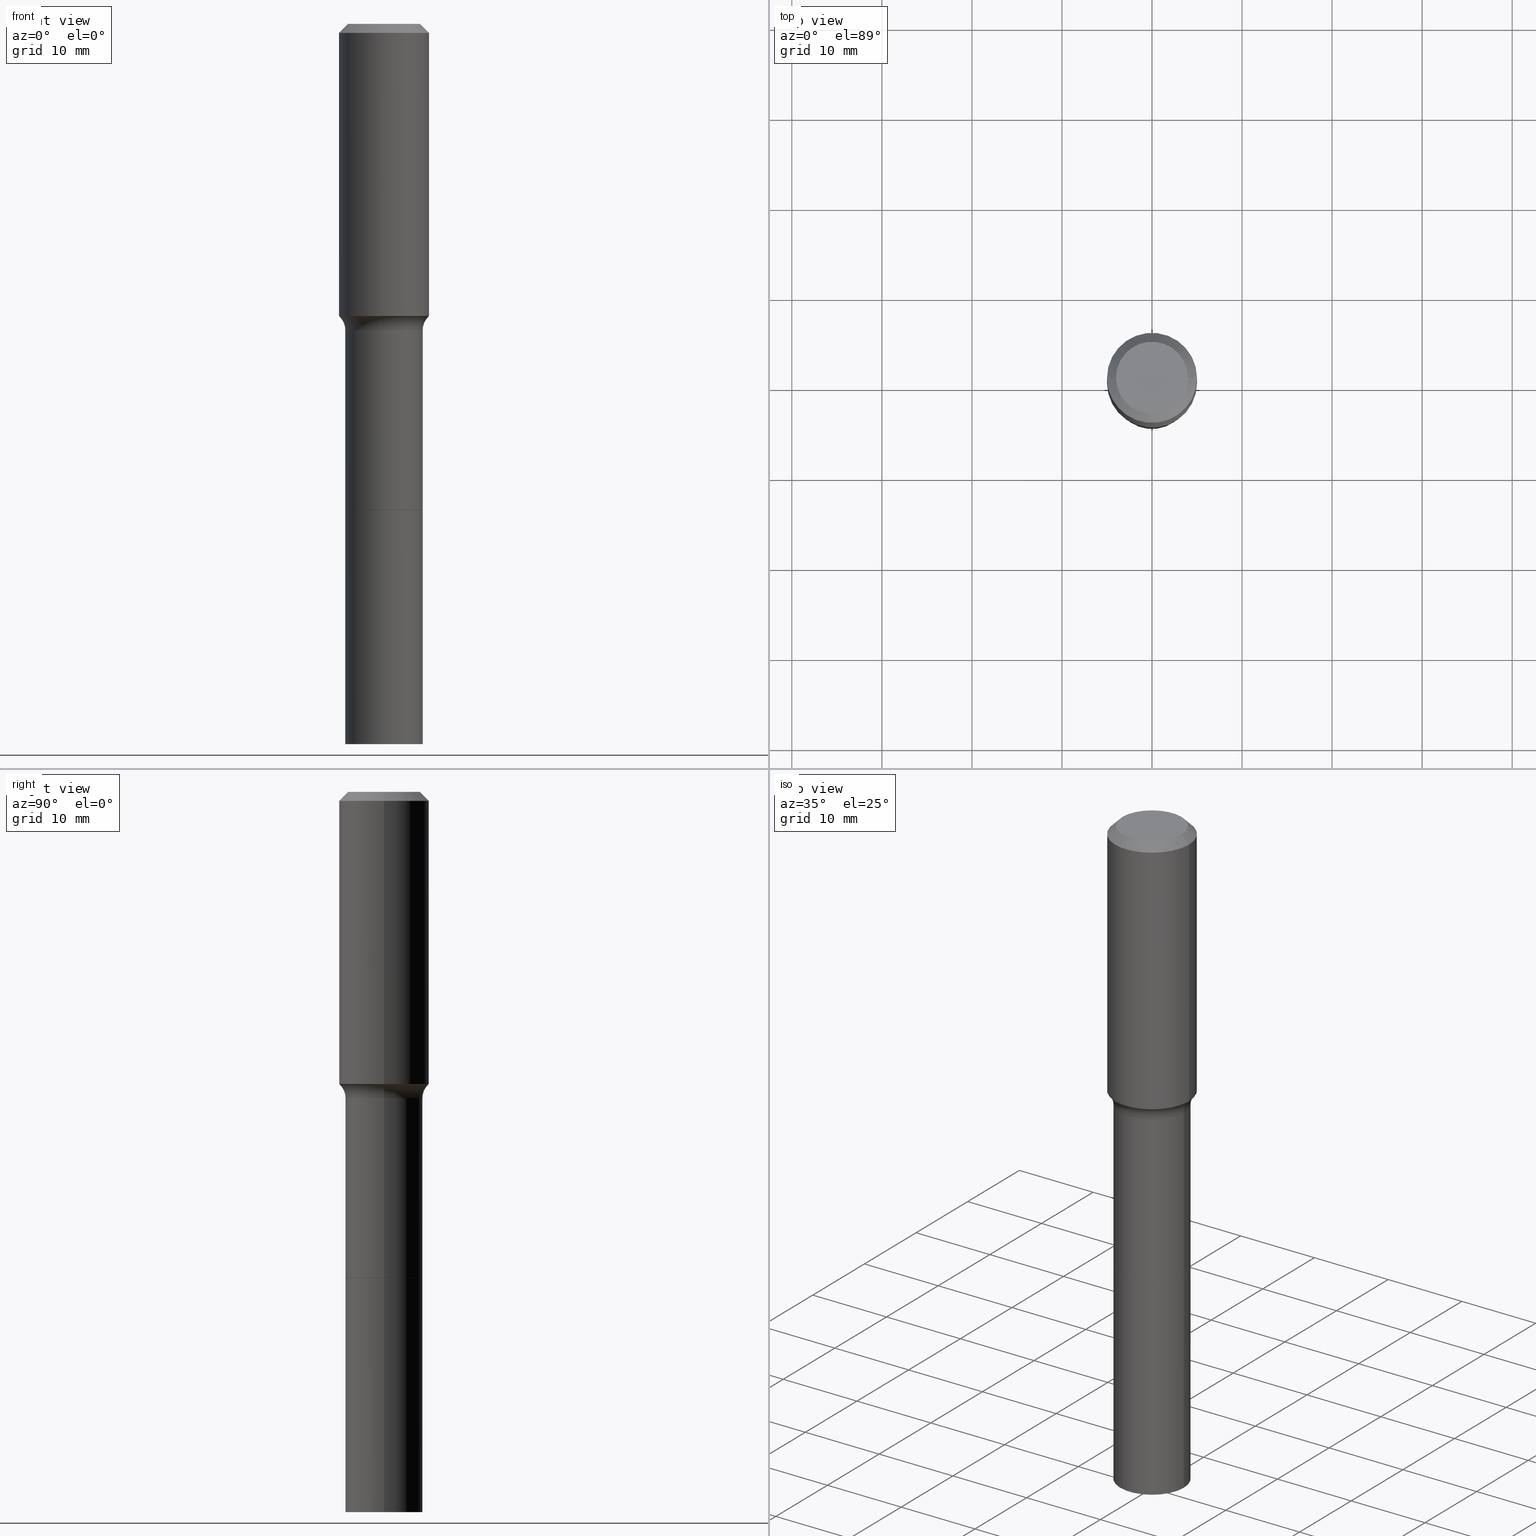
[diagram: canonical four-view strip — front | top / right | iso, engineering-drawing reading convention]
A machine part, canonical four-view strip (front | top / right | iso — engineering-drawing reading convention). The complete STEP part file that produces these views, byte-faithful:
ISO-10303-21;
HEADER;
FILE_DESCRIPTION (( 'STEP AP203' ),
    '1' );
FILE_NAME ('67763.STEP',
    '2025-04-01T15:30:20',
    ( '' ),
    ( '' ),
    'SwSTEP 2.0',
    'SolidWorks 2024',
    '' );
FILE_SCHEMA (( 'CONFIG_CONTROL_DESIGN' ));
ENDSEC;

DATA;
#1 = CARTESIAN_POINT ( 'NONE',  ( -0.1693000000000000338, -4.843773105033651673E-15, -2.125100000000000211 ) ) ;
#2 = CC_DESIGN_PERSON_AND_ORGANIZATION_ASSIGNMENT ( #253, #486, ( #363 ) ) ;
#3 = DIRECTION ( 'NONE',  ( -2.445468806185136597E-29, 3.491481338843145583E-15, 1.000000000000000000 ) ) ;
#4 = VECTOR ( 'NONE', #65, 39.37007874015748143 ) ;
#5 = DIRECTION ( 'NONE',  ( -2.445468806185136597E-29, 3.491481338843145583E-15, 1.000000000000000000 ) ) ;
#6 = FACE_OUTER_BOUND ( 'NONE', #312, .T. ) ;
#7 = ORIENTED_EDGE ( 'NONE', *, *, #441, .T. ) ;
#8 = EDGE_CURVE ( 'NONE', #498, #374, #168, .T. ) ;
#9 = DIRECTION ( 'NONE',  ( 1.000000000000000000, -6.982962677686266711E-15, 0.000000000000000000 ) ) ;
#10 = CIRCLE ( 'NONE', #76, 0.1688000000000000334 ) ;
#11 = AXIS2_PLACEMENT_3D ( 'NONE', #225, #464, #500 ) ;
#12 = CARTESIAN_POINT ( 'NONE',  ( 0.1693000000000000338, -8.603708315177275821E-15, -2.125599999999999934 ) ) ;
#13 = EDGE_CURVE ( 'NONE', #495, #30, #229, .T. ) ;
#14 = DIRECTION ( 'NONE',  ( -2.445468806185136597E-29, 3.491481338843145583E-15, 1.000000000000000000 ) ) ;
#15 = FACE_OUTER_BOUND ( 'NONE', #362, .T. ) ;
#16 = APPROVAL ( #238, 'UNSPECIFIED' ) ;
#17 = CIRCLE ( 'NONE', #443, 0.1968500000000001915 ) ;
#19 = DIRECTION ( 'NONE',  ( 1.000000000000000000, -6.982962677686266711E-15, 4.876176775795935793E-29 ) ) ;
#18 =( GEOMETRIC_REPRESENTATION_CONTEXT ( 3 ) GLOBAL_UNCERTAINTY_ASSIGNED_CONTEXT ( ( #497 ) ) GLOBAL_UNIT_ASSIGNED_CONTEXT ( ( #130, #44, #232 ) ) REPRESENTATION_CONTEXT ( 'NONE', 'WORKASPACE' ) );
#20 = VERTEX_POINT ( 'NONE', #117 ) ;
#21 = APPLICATION_PROTOCOL_DEFINITION ( 'international standard', 'config_control_design', 1994, #382 ) ;
#22 = LINE ( 'NONE', #454, #282 ) ;
#23 = ORIENTED_EDGE ( 'NONE', *, *, #13, .F. ) ;
#24 = CC_DESIGN_PERSON_AND_ORGANIZATION_ASSIGNMENT ( #499, #141, ( #249 ) ) ;
#25 = PLANE ( 'NONE',  #248 ) ;
#26 = VECTOR ( 'NONE', #355, 39.37007874015748854 ) ;
#27 = APPROVAL_PERSON_ORGANIZATION ( #34, #16, #227 ) ;
#28 = ORIENTED_EDGE ( 'NONE', *, *, #13, .T. ) ;
#29 = DIRECTION ( 'NONE',  ( 2.445468806185136597E-29, -3.491481338843145583E-15, -1.000000000000000000 ) ) ;
#30 = VERTEX_POINT ( 'NONE', #235 ) ;
#31 = DIRECTION ( 'NONE',  ( -2.445468806185136597E-29, 3.491481338843145583E-15, 1.000000000000000000 ) ) ;
#32 = VERTEX_POINT ( 'NONE', #356 ) ;
#33 = EDGE_CURVE ( 'NONE', #252, #155, #474, .T. ) ;
#34 = PERSON_AND_ORGANIZATION ( #323, #208 ) ;
#35 = DIRECTION ( 'NONE',  ( -1.000000000000000000, 6.982962677686265922E-15, -4.876176775795935793E-29 ) ) ;
#37 = EDGE_LOOP ( 'NONE', ( #269, #100, #488, #420 ) ) ;
#36 = AXIS2_PLACEMENT_3D ( 'NONE', #410, #99, #93 ) ;
#38 = PERSON_AND_ORGANIZATION_ROLE ( 'creator' ) ;
#39 = CONICAL_SURFACE ( 'NONE', #112, 0.1907917038704664836, 0.7504915783575588639 ) ;
#40 = CARTESIAN_POINT ( 'NONE',  ( 7.702248551960706711E-29, -1.099676962482037231E-14, -3.149600000000000399 ) ) ;
#41 = ORIENTED_EDGE ( 'NONE', *, *, #109, .F. ) ;
#42 = DIRECTION ( 'NONE',  ( 1.000000000000000000, -6.982962677686265922E-15, 4.876176775795935793E-29 ) ) ;
#43 = ORIENTED_EDGE ( 'NONE', *, *, #211, .T. ) ;
#44 =( NAMED_UNIT ( * ) PLANE_ANGLE_UNIT ( ) SI_UNIT ( $, .RADIAN. ) );
#45 = DIRECTION ( 'NONE',  ( -2.445468806185136597E-29, 3.491481338843145583E-15, 1.000000000000000000 ) ) ;
#46 = CARTESIAN_POINT ( 'NONE',  ( -0.1907917038704664281, -3.127545564108527340E-15, -1.284040131195000489 ) ) ;
#47 = PLANE ( 'NONE',  #483 ) ;
#48 = EDGE_LOOP ( 'NONE', ( #286, #490, #426, #306 ) ) ;
#49 = EDGE_CURVE ( 'NONE', #477, #498, #472, .T. ) ;
#50 = DIRECTION ( 'NONE',  ( -1.000000000000000000, 6.982962677686266711E-15, 0.000000000000000000 ) ) ;
#51 = ADVANCED_FACE ( 'NONE', ( #237 ), #263, .T. ) ;
#52 = DIRECTION ( 'NONE',  ( -2.445468806185136877E-29, 3.491481338843145188E-15, 1.000000000000000000 ) ) ;
#53 = DIRECTION ( 'NONE',  ( -2.445468806185136597E-29, 3.491481338843145583E-15, 1.000000000000000000 ) ) ;
#54 = ORIENTED_EDGE ( 'NONE', *, *, #491, .T. ) ;
#55 = CIRCLE ( 'NONE', #427, 0.07999999999999990452 ) ;
#56 = EDGE_CURVE ( 'NONE', #171, #20, #160, .T. ) ;
#57 = AXIS2_PLACEMENT_3D ( 'NONE', #384, #31, #184 ) ;
#58 = CARTESIAN_POINT ( 'NONE',  ( 0.1968500000000000527, -1.512055823412797583E-15, -0.03937000000000030059 ) ) ;
#59 = VERTEX_POINT ( 'NONE', #46 ) ;
#60 = DIRECTION ( 'NONE',  ( 1.000000000000000000, -6.982962677686261189E-15, 0.000000000000000000 ) ) ;
#61 = VECTOR ( 'NONE', #429, 39.37007874015748143 ) ;
#62 = CC_DESIGN_APPROVAL ( #230, ( #402 ) ) ;
#63 = ADVANCED_FACE ( 'NONE', ( #6 ), #507, .F. ) ;
#64 = COORDINATED_UNIVERSAL_TIME_OFFSET ( 5, 0, .BEHIND. ) ;
#65 = DIRECTION ( 'NONE',  ( 0.7071067811865452413, -7.319954787623248157E-15, -0.7071067811865497932 ) ) ;
#66 = EDGE_LOOP ( 'NONE', ( #41, #324 ) ) ;
#67 = DIRECTION ( 'NONE',  ( 2.438088387897960049E-29, -3.491481338843145188E-15, -1.000000000000000000 ) ) ;
#68 = ORIENTED_EDGE ( 'NONE', *, *, #95, .F. ) ;
#69 = EDGE_CURVE ( 'NONE', #30, #403, #17, .T. ) ;
#70 = DIRECTION ( 'NONE',  ( -2.445468806185136597E-29, 3.491481338843145583E-15, 1.000000000000000000 ) ) ;
#71 = APPROVAL_DATE_TIME ( #81, #176 ) ;
#72 = DIRECTION ( 'NONE',  ( 2.438088387897960049E-29, -3.491481338843145188E-15, -1.000000000000000000 ) ) ;
#73 = DIRECTION ( 'NONE',  ( 1.000000000000000000, -6.982962677686268288E-15, 0.000000000000000000 ) ) ;
#74 = DATE_AND_TIME ( #313, #201 ) ;
#75 = CARTESIAN_POINT ( 'NONE',  ( 3.273504543959424474E-29, -4.673696920175435525E-15, -1.338600000000000234 ) ) ;
#77 = EDGE_LOOP ( 'NONE', ( #480, #260, #127, #512 ) ) ;
#76 = AXIS2_PLACEMENT_3D ( 'NONE', #449, #489, #371 ) ;
#78 = AXIS2_PLACEMENT_3D ( 'NONE', #276, #205, #82 ) ;
#79 = CARTESIAN_POINT ( 'NONE',  ( 7.600267408520522536E-29, -3.981435805330322322E-15, -2.125599999999999934 ) ) ;
#80 = ORIENTED_EDGE ( 'NONE', *, *, #211, .F. ) ;
#81 = DATE_AND_TIME ( #310, #274 ) ;
#82 = DIRECTION ( 'NONE',  ( 1.000000000000000000, -6.982962677686268288E-15, 0.000000000000000000 ) ) ;
#83 = ORIENTED_EDGE ( 'NONE', *, *, #165, .F. ) ;
#84 = EDGE_CURVE ( 'NONE', #59, #498, #55, .T. ) ;
#85 = CARTESIAN_POINT ( 'NONE',  ( -0.1692999999999999228, -4.843773105033653251E-15, -1.338600000000000234 ) ) ;
#86 = ORIENTED_EDGE ( 'NONE', *, *, #236, .T. ) ;
#87 = AXIS2_PLACEMENT_3D ( 'NONE', #442, #285, #284 ) ;
#88 = DIRECTION ( 'NONE',  ( 7.105427357601001859E-15, 1.000000000000000000, -3.491481338843145583E-15 ) ) ;
#89 = CARTESIAN_POINT ( 'NONE',  ( 0.1688000000000000334, -8.600216833838431236E-15, -2.125599999999999934 ) ) ;
#90 = FACE_OUTER_BOUND ( 'NONE', #137, .T. ) ;
#91 = EDGE_CURVE ( 'NONE', #338, #219, #390, .T. ) ;
#92 = DESIGN_CONTEXT ( 'detailed design', #382, 'design' ) ;
#93 = DIRECTION ( 'NONE',  ( 1.000000000000000000, -6.982962677686265922E-15, 4.876223630392693006E-29 ) ) ;
#94 = EDGE_LOOP ( 'NONE', ( #415, #189 ) ) ;
#95 = EDGE_CURVE ( 'NONE', #155, #252, #128, .T. ) ;
#96 = AXIS2_PLACEMENT_3D ( 'NONE', #273, #433, #428 ) ;
#97 = CARTESIAN_POINT ( 'NONE',  ( 0.000000000000000000, 0.000000000000000000, 0.000000000000000000 ) ) ;
#98 = ORIENTED_EDGE ( 'NONE', *, *, #69, .T. ) ;
#99 = DIRECTION ( 'NONE',  ( -2.445468806185136597E-29, 3.491481338843145583E-15, 1.000000000000000000 ) ) ;
#100 = ORIENTED_EDGE ( 'NONE', *, *, #505, .T. ) ;
#101 = ADVANCED_FACE ( 'NONE', ( #438 ), #215, .T. ) ;
#102 = AXIS2_PLACEMENT_3D ( 'NONE', #407, #136, #134 ) ;
#103 = AXIS2_PLACEMENT_3D ( 'NONE', #365, #156, #431 ) ;
#104 = COORDINATED_UNIVERSAL_TIME_OFFSET ( 5, 0, .BEHIND. ) ;
#105 = PLANE ( 'NONE',  #221 ) ;
#106 = ORIENTED_EDGE ( 'NONE', *, *, #91, .F. ) ;
#107 = EDGE_CURVE ( 'NONE', #423, #374, #333, .T. ) ;
#108 = ORIENTED_EDGE ( 'NONE', *, *, #49, .F. ) ;
#109 = EDGE_CURVE ( 'NONE', #179, #303, #10, .T. ) ;
#110 = CARTESIAN_POINT ( 'NONE',  ( 3.273504543959424474E-29, -4.673696920175435525E-15, -1.338600000000000234 ) ) ;
#111 = AXIS2_PLACEMENT_3D ( 'NONE', #75, #259, #421 ) ;
#112 = AXIS2_PLACEMENT_3D ( 'NONE', #419, #70, #468 ) ;
#113 = ORIENTED_EDGE ( 'NONE', *, *, #515, .F. ) ;
#114 = DIRECTION ( 'NONE',  ( -1.000000000000000000, 6.982962677686265922E-15, -4.876176775795935793E-29 ) ) ;
#115 = ORIENTED_EDGE ( 'NONE', *, *, #289, .T. ) ;
#116 = DIRECTION ( 'NONE',  ( 1.000000000000000000, -6.982962677686268288E-15, 0.000000000000000000 ) ) ;
#117 = CARTESIAN_POINT ( 'NONE',  ( -0.1574800000000000089, 1.168406772637159815E-15, 3.855188123707939751E-18 ) ) ;
#118 = CALENDAR_DATE ( 2025, 1, 4 ) ;
#120 = ORIENTED_EDGE ( 'NONE', *, *, #84, .T. ) ;
#119 = CONICAL_SURFACE ( 'NONE', #337, 0.1688000000000000334, 0.7853981633978239785 ) ;
#121 = ADVANCED_FACE ( 'NONE', ( #90 ), #255, .T. ) ;
#122 = AXIS2_PLACEMENT_3D ( 'NONE', #514, #202, #314 ) ;
#123 = ORIENTED_EDGE ( 'NONE', *, *, #510, .T. ) ;
#124 = CARTESIAN_POINT ( 'NONE',  ( 0.1907917038704664281, -5.815493503732685014E-15, -1.284040131195000489 ) ) ;
#125 = ORIENTED_EDGE ( 'NONE', *, *, #178, .F. ) ;
#126 = MECHANICAL_CONTEXT ( 'NONE', #216, 'mechanical' ) ;
#127 = ORIENTED_EDGE ( 'NONE', *, *, #510, .F. ) ;
#128 = CIRCLE ( 'NONE', #492, 0.1693000000000000338 ) ;
#129 = CIRCLE ( 'NONE', #169, 0.1907917038704664836 ) ;
#130 =( CONVERSION_BASED_UNIT ( 'INCH', #404 ) LENGTH_UNIT ( ) NAMED_UNIT ( #335 ) );
#131 = CARTESIAN_POINT ( 'NONE',  ( 7.702248551960706711E-29, -1.099676962482037231E-14, -3.149600000000000399 ) ) ;
#132 = DIRECTION ( 'NONE',  ( -2.445468806185136597E-29, 3.491481338843145583E-15, 1.000000000000000000 ) ) ;
#133 = EDGE_LOOP ( 'NONE', ( #291, #115, #279, #113 ) ) ;
#134 = DIRECTION ( 'NONE',  ( 1.000000000000000000, -6.982962677686266711E-15, 4.876176775795935793E-29 ) ) ;
#135 = AXIS2_PLACEMENT_3D ( 'NONE', #506, #460, #425 ) ;
#136 = DIRECTION ( 'NONE',  ( -2.445468806185136597E-29, 3.491481338843145583E-15, 1.000000000000000000 ) ) ;
#137 = EDGE_LOOP ( 'NONE', ( #108, #319, #447, #293 ) ) ;
#138 = ADVANCED_FACE ( 'NONE', ( #204 ), #336, .T. ) ;
#139 = ADVANCED_FACE ( 'NONE', ( #15 ), #369, .T. ) ;
#140 = ORIENTED_EDGE ( 'NONE', *, *, #448, .F. ) ;
#141 = PERSON_AND_ORGANIZATION_ROLE ( 'design_supplier' ) ;
#142 = VECTOR ( 'NONE', #172, 39.37007874015748143 ) ;
#143 = ORIENTED_EDGE ( 'NONE', *, *, #95, .T. ) ;
#144 = DIRECTION ( 'NONE',  ( 1.000000000000000000, -6.982962677686266711E-15, 0.000000000000000000 ) ) ;
#145 = ORIENTED_EDGE ( 'NONE', *, *, #236, .F. ) ;
#146 = PRODUCT_RELATED_PRODUCT_CATEGORY ( 'detail', '', ( #363 ) ) ;
#147 = FACE_OUTER_BOUND ( 'NONE', #77, .T. ) ;
#148 = EDGE_LOOP ( 'NONE', ( #262, #86, #166, #23 ) ) ;
#149 = LINE ( 'NONE', #261, #272 ) ;
#150 = CLOSED_SHELL ( 'NONE', ( #254, #330, #139, #349, #63, #226, #121, #264, #51, #138, #101, #325, #457, #292 ) ) ;
#151 = LOCAL_TIME ( 11, 30, 20.00000000000000000, #104 ) ;
#152 = APPROVAL_STATUS ( 'not_yet_approved' ) ;
#153 = ADVANCED_FACE ( 'NONE', ( #485 ), #405, .T. ) ;
#154 = CARTESIAN_POINT ( 'NONE',  ( 9.627810689950955906E-31, -1.374596203102556794E-16, -0.03937000000000030059 ) ) ;
#155 = VERTEX_POINT ( 'NONE', #12 ) ;
#156 = DIRECTION ( 'NONE',  ( -2.445468806185136597E-29, 3.491481338843145583E-15, 1.000000000000000000 ) ) ;
#157 = DIRECTION ( 'NONE',  ( -2.445468806185136597E-29, 3.491481338843145583E-15, 1.000000000000000000 ) ) ;
#158 = LINE ( 'NONE', #317, #408 ) ;
#160 = CIRCLE ( 'NONE', #233, 0.1574800000000000089 ) ;
#159 = DIRECTION ( 'NONE',  ( 1.000000000000000000, -6.982962677686265922E-15, 4.876223630392693006E-29 ) ) ;
#161 = EDGE_CURVE ( 'NONE', #20, #171, #366, .T. ) ;
#162 = CIRCLE ( 'NONE', #451, 0.1692999999999999228 ) ;
#163 = DIRECTION ( 'NONE',  ( 1.000000000000000000, -6.982962677686263555E-15, 0.000000000000000000 ) ) ;
#164 = ORIENTED_EDGE ( 'NONE', *, *, #33, .T. ) ;
#165 = EDGE_CURVE ( 'NONE', #393, #32, #435, .T. ) ;
#166 = ORIENTED_EDGE ( 'NONE', *, *, #69, .F. ) ;
#167 = DIRECTION ( 'NONE',  ( 2.445468806185136597E-29, -3.491481338843145583E-15, -1.000000000000000000 ) ) ;
#168 = CIRCLE ( 'NONE', #294, 0.1692999999999999228 ) ;
#169 = AXIS2_PLACEMENT_3D ( 'NONE', #360, #5, #163 ) ;
#170 = DIRECTION ( 'NONE',  ( -2.445468806185136597E-29, 3.491481338843145583E-15, 1.000000000000000000 ) ) ;
#171 = VERTEX_POINT ( 'NONE', #411 ) ;
#172 = DIRECTION ( 'NONE',  ( -2.445468806185136877E-29, 3.491481338843145188E-15, 1.000000000000000000 ) ) ;
#173 = CYLINDRICAL_SURFACE ( 'NONE', #135, 0.1692999999999999505 ) ;
#174 = CARTESIAN_POINT ( 'NONE',  ( -0.2492999999999999106, -2.902313879925506398E-15, -1.338600000000000234 ) ) ;
#175 = ORIENTED_EDGE ( 'NONE', *, *, #8, .T. ) ;
#176 = APPROVAL ( #152, 'UNSPECIFIED' ) ;
#177 = PERSON_AND_ORGANIZATION_ROLE ( 'creator' ) ;
#178 = EDGE_CURVE ( 'NONE', #30, #219, #331, .T. ) ;
#179 = VERTEX_POINT ( 'NONE', #209 ) ;
#180 = TOROIDAL_SURFACE ( 'NONE', #111, 0.2492999999999999106, 0.07999999999999993228 ) ;
#181 = CC_DESIGN_APPROVAL ( #176, ( #239 ) ) ;
#182 = LINE ( 'NONE', #191, #26 ) ;
#183 = DIRECTION ( 'NONE',  ( -1.000000000000000000, 6.982962677686266711E-15, 0.000000000000000000 ) ) ;
#184 = DIRECTION ( 'NONE',  ( 1.000000000000000000, -6.982962677686266711E-15, 0.000000000000000000 ) ) ;
#185 = ORIENTED_EDGE ( 'NONE', *, *, #343, .F. ) ;
#186 = DATE_AND_TIME ( #218, #463 ) ;
#187 = VECTOR ( 'NONE', #244, 39.37007874015748143 ) ;
#188 = FACE_OUTER_BOUND ( 'NONE', #377, .T. ) ;
#189 = ORIENTED_EDGE ( 'NONE', *, *, #56, .T. ) ;
#190 = APPROVAL_ROLE ( '' ) ;
#191 = CARTESIAN_POINT ( 'NONE',  ( -0.1688000000000000334, -6.222096595881940669E-15, -2.125599999999999934 ) ) ;
#192 = DIRECTION ( 'NONE',  ( -2.445468806185136597E-29, 3.491481338843145583E-15, 1.000000000000000000 ) ) ;
#193 = PERSON_AND_ORGANIZATION ( #323, #208 ) ;
#194 = CARTESIAN_POINT ( 'NONE',  ( -0.1693000000000001171, -6.218543882203139770E-15, -2.125599999999999934 ) ) ;
#195 = EDGE_LOOP ( 'NONE', ( #123, #332, #185, #266 ) ) ;
#196 = APPROVAL_ROLE ( '' ) ;
#197 = APPLICATION_PROTOCOL_DEFINITION ( 'international standard', 'config_control_design', 1994, #216 ) ;
#198 = CC_DESIGN_DATE_AND_TIME_ASSIGNMENT ( #74, #231, ( #402 ) ) ;
#200 = ORIENTED_EDGE ( 'NONE', *, *, #91, .T. ) ;
#199 = AXIS2_PLACEMENT_3D ( 'NONE', #309, #348, #223 ) ;
#201 = LOCAL_TIME ( 11, 30, 20.00000000000000000, #466 ) ;
#202 = DIRECTION ( 'NONE',  ( 0.000000000000000000, 0.000000000000000000, 1.000000000000000000 ) ) ;
#203 = ORIENTED_EDGE ( 'NONE', *, *, #343, .T. ) ;
#204 = FACE_OUTER_BOUND ( 'NONE', #434, .T. ) ;
#205 = DIRECTION ( 'NONE',  ( -6.982962677686266711E-15, -1.000000000000000000, 3.491481338843145583E-15 ) ) ;
#206 = CARTESIAN_POINT ( 'NONE',  ( 9.627810689950955906E-31, -1.374596203102556794E-16, -0.03937000000000030059 ) ) ;
#207 = AXIS2_PLACEMENT_3D ( 'NONE', #446, #287, #245 ) ;
#208 = ORGANIZATION ( 'UNSPECIFIED', 'UNSPECIFIED', '' ) ;
#209 = CARTESIAN_POINT ( 'NONE',  ( 0.1688000000000000334, -8.600216833838431236E-15, -2.125599999999999934 ) ) ;
#210 = DATE_AND_TIME ( #118, #318 ) ;
#211 = EDGE_CURVE ( 'NONE', #403, #338, #487, .T. ) ;
#212 = FACE_OUTER_BOUND ( 'NONE', #195, .T. ) ;
#213 = CARTESIAN_POINT ( 'NONE',  ( 9.627810689950955906E-31, -1.374596203102556794E-16, -0.03937000000000030059 ) ) ;
#214 = VECTOR ( 'NONE', #251, 39.37007874015748143 ) ;
#215 = CONICAL_SURFACE ( 'NONE', #288, 0.1968500000000000527, 0.7853981633974450594 ) ;
#216 = APPLICATION_CONTEXT ( 'configuration controlled 3d designs of mechanical parts and assemblies' ) ;
#217 = ORIENTED_EDGE ( 'NONE', *, *, #289, .F. ) ;
#218 = CALENDAR_DATE ( 2025, 1, 4 ) ;
#219 = VERTEX_POINT ( 'NONE', #58 ) ;
#220 = FACE_OUTER_BOUND ( 'NONE', #452, .T. ) ;
#221 = AXIS2_PLACEMENT_3D ( 'NONE', #516, #67, #114 ) ;
#222 = CC_DESIGN_APPROVAL ( #16, ( #249 ) ) ;
#223 = DIRECTION ( 'NONE',  ( 1.000000000000000000, -6.982962677686266711E-15, 0.000000000000000000 ) ) ;
#224 = EDGE_LOOP ( 'NONE', ( #145, #54, #28, #246 ) ) ;
#225 = CARTESIAN_POINT ( 'NONE',  ( 5.196865760024034053E-29, -7.419746993175568713E-15, -2.125100000000000211 ) ) ;
#226 = ADVANCED_FACE ( 'NONE', ( #212 ), #173, .T. ) ;
#227 = APPROVAL_ROLE ( '' ) ;
#228 = DIRECTION ( 'NONE',  ( 1.000000000000000000, -6.982962677686269077E-15, 0.000000000000000000 ) ) ;
#229 = LINE ( 'NONE', #387, #256 ) ;
#230 = APPROVAL ( #388, 'UNSPECIFIED' ) ;
#231 = DATE_TIME_ROLE ( 'classification_date' ) ;
#232 =( NAMED_UNIT ( * ) SI_UNIT ( $, .STERADIAN. ) SOLID_ANGLE_UNIT ( ) );
#233 = AXIS2_PLACEMENT_3D ( 'NONE', #359, #3, #159 ) ;
#234 = DIRECTION ( 'NONE',  ( -0.6819983600624963671, 7.399397606724278688E-15, 0.7313537016191724582 ) ) ;
#235 = CARTESIAN_POINT ( 'NONE',  ( 0.1968500000000001915, -5.835115157694468144E-15, -1.277543403989624737 ) ) ;
#236 = EDGE_CURVE ( 'NONE', #59, #403, #149, .T. ) ;
#237 = FACE_OUTER_BOUND ( 'NONE', #224, .T. ) ;
#238 = APPROVAL_STATUS ( 'not_yet_approved' ) ;
#239 = PRODUCT_DEFINITION ( 'UNKNOWN', '', #249, #92 ) ;
#240 = CARTESIAN_POINT ( 'NONE',  ( 3.140080086727243582E-29, -4.483202156393049043E-15, -1.284040131195000489 ) ) ;
#241 = ORIENTED_EDGE ( 'NONE', *, *, #430, .T. ) ;
#242 = CYLINDRICAL_SURFACE ( 'NONE', #508, 0.1693000000000001171 ) ;
#243 = ORIENTED_EDGE ( 'NONE', *, *, #515, .T. ) ;
#244 = DIRECTION ( 'NONE',  ( -2.445468806185136877E-29, 3.491481338843145188E-15, 1.000000000000000000 ) ) ;
#245 = DIRECTION ( 'NONE',  ( 1.000000000000000000, -6.982962677686266711E-15, 4.876176775795935232E-29 ) ) ;
#246 = ORIENTED_EDGE ( 'NONE', *, *, #378, .F. ) ;
#247 = CARTESIAN_POINT ( 'NONE',  ( -0.1968500000000001082, 1.398703375343757985E-15, -9.682923725166787881E-30 ) ) ;
#248 = AXIS2_PLACEMENT_3D ( 'NONE', #40, #72, #35 ) ;
#249 = PRODUCT_DEFINITION_FORMATION_WITH_SPECIFIED_SOURCE ( 'ANY', '', #363, .NOT_KNOWN. ) ;
#250 = ADVANCED_FACE ( 'NONE', ( #220 ), #105, .F. ) ;
#251 = DIRECTION ( 'NONE',  ( -2.445468806185136877E-29, 3.491481338843145188E-15, 1.000000000000000000 ) ) ;
#252 = VERTEX_POINT ( 'NONE', #379 ) ;
#253 = PERSON_AND_ORGANIZATION ( #323, #208 ) ;
#254 = ADVANCED_FACE ( 'NONE', ( #147 ), #119, .T. ) ;
#255 = CYLINDRICAL_SURFACE ( 'NONE', #207, 0.1692999999999999505 ) ;
#256 = VECTOR ( 'NONE', #469, 39.37007874015748143 ) ;
#257 = VECTOR ( 'NONE', #52, 39.37007874015748143 ) ;
#258 = DIRECTION ( 'NONE',  ( -0.7071067811865452413, 2.468850131082233000E-15, -0.7071067811865497932 ) ) ;
#259 = DIRECTION ( 'NONE',  ( -2.445468806185136597E-29, 3.491481338843145583E-15, 1.000000000000000000 ) ) ;
#260 = ORIENTED_EDGE ( 'NONE', *, *, #280, .T. ) ;
#261 = CARTESIAN_POINT ( 'NONE',  ( -0.1907917038704664836, -3.127545564108527340E-15, -1.284040131195000489 ) ) ;
#262 = ORIENTED_EDGE ( 'NONE', *, *, #473, .T. ) ;
#263 = CONICAL_SURFACE ( 'NONE', #450, 0.1907917038704664836, 0.7504915783575588639 ) ;
#264 = ADVANCED_FACE ( 'NONE', ( #392 ), #180, .F. ) ;
#265 = FACE_OUTER_BOUND ( 'NONE', #148, .T. ) ;
#266 = ORIENTED_EDGE ( 'NONE', *, *, #107, .F. ) ;
#267 = ADVANCED_FACE ( 'NONE', ( #188 ), #25, .T. ) ;
#268 = CARTESIAN_POINT ( 'NONE',  ( 5.198088494427125733E-29, -7.421492733844989428E-15, -2.125599999999999934 ) ) ;
#269 = ORIENTED_EDGE ( 'NONE', *, *, #280, .F. ) ;
#270 = CARTESIAN_POINT ( 'NONE',  ( 0.1692999999999999228, -5.855912501507720341E-15, -1.338600000000000234 ) ) ;
#271 = EDGE_LOOP ( 'NONE', ( #459, #385, #241, #203 ) ) ;
#272 = VECTOR ( 'NONE', #234, 39.37007874015748143 ) ;
#273 = CARTESIAN_POINT ( 'NONE',  ( 9.627810689950955906E-31, -1.374596203102556794E-16, -0.03937000000000030059 ) ) ;
#274 = LOCAL_TIME ( 11, 30, 20.00000000000000000, #394 ) ;
#275 = CARTESIAN_POINT ( 'NONE',  ( -0.1692999999999999505, 1.202948851641849263E-15, -8.327757107801552909E-30 ) ) ;
#276 = CARTESIAN_POINT ( 'NONE',  ( 0.2492999999999999106, -6.414549515722621204E-15, -1.338600000000000234 ) ) ;
#277 = CARTESIAN_POINT ( 'NONE',  ( 3.140080086727243582E-29, -4.483202156393049043E-15, -1.284040131195000489 ) ) ;
#278 = CARTESIAN_POINT ( 'NONE',  ( 0.1693000000000000338, -8.601962574507855106E-15, -2.125100000000000211 ) ) ;
#279 = ORIENTED_EDGE ( 'NONE', *, *, #448, .T. ) ;
#280 = EDGE_CURVE ( 'NONE', #303, #477, #182, .T. ) ;
#281 = DIRECTION ( 'NONE',  ( 1.000000000000000000, -6.982962677686263555E-15, 0.000000000000000000 ) ) ;
#282 = VECTOR ( 'NONE', #258, 39.37007874015748143 ) ;
#283 = DIRECTION ( 'NONE',  ( 1.000000000000000000, -6.982962677686265922E-15, 0.000000000000000000 ) ) ;
#284 = DIRECTION ( 'NONE',  ( 1.000000000000000000, -6.982962677686265922E-15, 4.883557194083112340E-29 ) ) ;
#285 = DIRECTION ( 'NONE',  ( -2.445468806185136597E-29, 3.491481338843145583E-15, 1.000000000000000000 ) ) ;
#286 = ORIENTED_EDGE ( 'NONE', *, *, #422, .F. ) ;
#287 = DIRECTION ( 'NONE',  ( -2.445468806185136597E-29, 3.491481338843145583E-15, 1.000000000000000000 ) ) ;
#288 = AXIS2_PLACEMENT_3D ( 'NONE', #213, #167, #50 ) ;
#289 = EDGE_CURVE ( 'NONE', #171, #219, #414, .T. ) ;
#290 = DIRECTION ( 'NONE',  ( 1.000000000000000000, -6.982962677686265922E-15, 0.000000000000000000 ) ) ;
#291 = ORIENTED_EDGE ( 'NONE', *, *, #56, .F. ) ;
#292 = ADVANCED_FACE ( 'NONE', ( #455 ), #418, .T. ) ;
#293 = ORIENTED_EDGE ( 'NONE', *, *, #8, .F. ) ;
#294 = AXIS2_PLACEMENT_3D ( 'NONE', #481, #192, #73 ) ;
#295 = CIRCLE ( 'NONE', #78, 0.07999999999999990452 ) ;
#296 = PERSON_AND_ORGANIZATION ( #323, #208 ) ;
#297 = DIRECTION ( 'NONE',  ( -2.445468806185136597E-29, 3.491481338843145583E-15, 1.000000000000000000 ) ) ;
#298 = CARTESIAN_POINT ( 'NONE',  ( 0.1968500000000000527, -1.487948651171581996E-15, -0.03937000000000030059 ) ) ;
#299 = CC_DESIGN_PERSON_AND_ORGANIZATION_ASSIGNMENT ( #193, #38, ( #239 ) ) ;
#300 = ORIENTED_EDGE ( 'NONE', *, *, #441, .F. ) ;
#301 =( LENGTH_UNIT ( ) NAMED_UNIT ( * ) SI_UNIT ( $, .METRE. ) );
#302 = DIRECTION ( 'NONE',  ( 2.438088387897960049E-29, -3.491481338843145188E-15, -1.000000000000000000 ) ) ;
#303 = VERTEX_POINT ( 'NONE', #503 ) ;
#304 = EDGE_CURVE ( 'NONE', #477, #423, #400, .T. ) ;
#305 = DIRECTION ( 'NONE',  ( -2.445468806185136597E-29, 3.491481338843145583E-15, 1.000000000000000000 ) ) ;
#306 = ORIENTED_EDGE ( 'NONE', *, *, #33, .F. ) ;
#307 = CLOSED_SHELL ( 'NONE', ( #153, #267, #389, #250 ) ) ;
#308 = AXIS2_PLACEMENT_3D ( 'NONE', #240, #45, #358 ) ;
#309 = CARTESIAN_POINT ( 'NONE',  ( 5.198088494427125733E-29, -7.421492733844989428E-15, -2.125599999999999934 ) ) ;
#310 = CALENDAR_DATE ( 2025, 1, 4 ) ;
#311 = CARTESIAN_POINT ( 'NONE',  ( -0.1968500000000000527, -9.002859121073322847E-16, -0.03937000000000030059 ) ) ;
#312 = EDGE_LOOP ( 'NONE', ( #465, #120, #175, #396 ) ) ;
#313 = CALENDAR_DATE ( 2025, 1, 4 ) ;
#314 = DIRECTION ( 'NONE',  ( 1.000000000000000000, 0.000000000000000000, 0.000000000000000000 ) ) ;
#315 = DIRECTION ( 'NONE',  ( 1.000000000000000000, -6.982962677686263555E-15, 0.000000000000000000 ) ) ;
#316 = AXIS2_PLACEMENT_3D ( 'NONE', #458, #302, #383 ) ;
#317 = CARTESIAN_POINT ( 'NONE',  ( 0.1693000000000001171, -8.603708315177275821E-15, -2.125599999999999934 ) ) ;
#318 = LOCAL_TIME ( 11, 30, 20.00000000000000000, #470 ) ;
#319 = ORIENTED_EDGE ( 'NONE', *, *, #304, .T. ) ;
#320 = SHAPE_DEFINITION_REPRESENTATION ( #444, #467 ) ;
#321 = MANIFOLD_SOLID_BREP ( 'Body-Move/Copy2[1]', #307 ) ;
#322 = LINE ( 'NONE', #194, #257 ) ;
#323 = PERSON ( 'UNSPECIFIED', 'UNSPECIFIED', 'UNSPECIFIED', ('UNSPECIFIED'), ('UNSPECIFIED'), ('UNSPECIFIED') ) ;
#324 = ORIENTED_EDGE ( 'NONE', *, *, #505, .F. ) ;
#325 = ADVANCED_FACE ( 'NONE', ( #353 ), #350, .F. ) ;
#326 = EDGE_LOOP ( 'NONE', ( #217, #456, #243, #200 ) ) ;
#327 = AXIS2_PLACEMENT_3D ( 'NONE', #131, #170, #60 ) ;
#329 = DIRECTION ( 'NONE',  ( -2.445468806185136597E-29, 3.491481338843145583E-15, 1.000000000000000000 ) ) ;
#328 = VECTOR ( 'NONE', #406, 39.37007874015748854 ) ;
#330 = ADVANCED_FACE ( 'NONE', ( #511 ), #347, .T. ) ;
#331 = LINE ( 'NONE', #372, #214 ) ;
#332 = ORIENTED_EDGE ( 'NONE', *, *, #49, .T. ) ;
#333 = LINE ( 'NONE', #440, #187 ) ;
#334 = CC_DESIGN_PERSON_AND_ORGANIZATION_ASSIGNMENT ( #296, #453, ( #402 ) ) ;
#335 = DIMENSIONAL_EXPONENTS ( 1.000000000000000000, 0.000000000000000000, 0.000000000000000000, 0.000000000000000000, 0.000000000000000000, 0.000000000000000000, 0.000000000000000000 ) ;
#336 = CYLINDRICAL_SURFACE ( 'NONE', #102, 0.1968500000000001082 ) ;
#337 = AXIS2_PLACEMENT_3D ( 'NONE', #268, #417, #144 ) ;
#338 = VERTEX_POINT ( 'NONE', #311 ) ;
#339 = MANIFOLD_SOLID_BREP ( 'Body-Move/Copy2[2]', #150 ) ;
#340 = CIRCLE ( 'NONE', #103, 0.1693000000000002281 ) ;
#341 = CARTESIAN_POINT ( 'NONE',  ( 5.198088494427125733E-29, -7.421492733844989428E-15, -2.125599999999999934 ) ) ;
#342 = DIRECTION ( 'NONE',  ( -2.445468806185136597E-29, 3.491481338843145583E-15, 1.000000000000000000 ) ) ;
#343 = EDGE_CURVE ( 'NONE', #374, #498, #162, .T. ) ;
#344 = CALENDAR_DATE ( 2025, 1, 4 ) ;
#345 = ORIENTED_EDGE ( 'NONE', *, *, #484, .F. ) ;
#346 = AXIS2_PLACEMENT_3D ( 'NONE', #206, #132, #368 ) ;
#347 = CONICAL_SURFACE ( 'NONE', #509, 0.1968500000000000527, 0.7853981633974450594 ) ;
#348 = DIRECTION ( 'NONE',  ( -2.445468806185136597E-29, 3.491481338843145583E-15, 1.000000000000000000 ) ) ;
#349 = ADVANCED_FACE ( 'NONE', ( #265 ), #39, .T. ) ;
#350 = PLANE ( 'NONE',  #316 ) ;
#351 = FACE_OUTER_BOUND ( 'NONE', #48, .T. ) ;
#352 = SECURITY_CLASSIFICATION_LEVEL ( 'unclassified' ) ;
#353 = FACE_OUTER_BOUND ( 'NONE', #94, .T. ) ;
#354 = EDGE_LOOP ( 'NONE', ( #7, #399, #68, #345 ) ) ;
#355 = DIRECTION ( 'NONE',  ( -0.7071067811868130271, 7.493145998871311837E-15, 0.7071067811862817853 ) ) ;
#356 = CARTESIAN_POINT ( 'NONE',  ( 0.1693000000000002281, -1.217898520615265870E-14, -3.149600000000000399 ) ) ;
#357 = APPROVAL_DATE_TIME ( #186, #16 ) ;
#358 = DIRECTION ( 'NONE',  ( 1.000000000000000000, -6.982962677686263555E-15, 0.000000000000000000 ) ) ;
#359 = CARTESIAN_POINT ( 'NONE',  ( -9.427742298522567634E-47, 1.346031739168368355E-32, 3.855188123715870730E-18 ) ) ;
#360 = CARTESIAN_POINT ( 'NONE',  ( 3.140080086727243582E-29, -4.483202156393049043E-15, -1.284040131195000489 ) ) ;
#361 = DIRECTION ( 'NONE',  ( -2.445468806185136597E-29, 3.491481338843145583E-15, 1.000000000000000000 ) ) ;
#362 = EDGE_LOOP ( 'NONE', ( #98, #43, #140, #125 ) ) ;
#363 = PRODUCT ( '67763', '67763', '', ( #126 ) ) ;
#364 = CARTESIAN_POINT ( 'NONE',  ( 5.198088494427126854E-29, -7.421492733844991006E-15, -2.125599999999999934 ) ) ;
#365 = CARTESIAN_POINT ( 'NONE',  ( 7.702248551960706711E-29, -1.099676962482037231E-14, -3.149600000000000399 ) ) ;
#366 = CIRCLE ( 'NONE', #36, 0.1574800000000000089 ) ;
#368 = DIRECTION ( 'NONE',  ( 1.000000000000000000, -6.982962677686266711E-15, 0.000000000000000000 ) ) ;
#367 = CIRCLE ( 'NONE', #308, 0.1907917038704664836 ) ;
#369 = CYLINDRICAL_SURFACE ( 'NONE', #482, 0.1968500000000001082 ) ;
#370 = APPROVAL_DATE_TIME ( #210, #230 ) ;
#371 = DIRECTION ( 'NONE',  ( 1.000000000000000000, -6.982962677686266711E-15, 0.000000000000000000 ) ) ;
#372 = CARTESIAN_POINT ( 'NONE',  ( 0.1968500000000001082, -1.374596203102542397E-15, 9.598753983154305062E-30 ) ) ;
#373 = AXIS2_PLACEMENT_3D ( 'NONE', #517, #157, #315 ) ;
#374 = VERTEX_POINT ( 'NONE', #270 ) ;
#375 = PERSON_AND_ORGANIZATION ( #323, #208 ) ;
#376 = DIRECTION ( 'NONE',  ( 1.000000000000000000, -6.982962677686266711E-15, 0.000000000000000000 ) ) ;
#377 = EDGE_LOOP ( 'NONE', ( #300, #83 ) ) ;
#378 = EDGE_CURVE ( 'NONE', #403, #30, #501, .T. ) ;
#379 = CARTESIAN_POINT ( 'NONE',  ( -0.1693000000000000338, -8.006182327690830422E-15, -2.125599999999999934 ) ) ;
#380 = AXIS2_PLACEMENT_3D ( 'NONE', #364, #53, #290 ) ;
#381 = CC_DESIGN_SECURITY_CLASSIFICATION ( #402, ( #249 ) ) ;
#382 = APPLICATION_CONTEXT ( 'configuration controlled 3d designs of mechanical parts and assemblies' ) ;
#383 = DIRECTION ( 'NONE',  ( -1.000000000000000000, 6.982962677686265922E-15, -4.876176775795935793E-29 ) ) ;
#384 = CARTESIAN_POINT ( 'NONE',  ( 3.124192543004203228E-29, -4.460518954591924958E-15, -1.277543403989624737 ) ) ;
#385 = ORIENTED_EDGE ( 'NONE', *, *, #473, .F. ) ;
#386 = CARTESIAN_POINT ( 'NONE',  ( 5.196865760024034053E-29, -7.419746993175568713E-15, -2.125100000000000211 ) ) ;
#387 = CARTESIAN_POINT ( 'NONE',  ( 0.1907917038704664836, -5.815493503732685803E-15, -1.284040131195000489 ) ) ;
#388 = APPROVAL_STATUS ( 'not_yet_approved' ) ;
#389 = ADVANCED_FACE ( 'NONE', ( #351 ), #242, .T. ) ;
#390 = CIRCLE ( 'NONE', #346, 0.1968500000000000527 ) ;
#391 = CIRCLE ( 'NONE', #96, 0.1968500000000000527 ) ;
#392 = FACE_OUTER_BOUND ( 'NONE', #271, .T. ) ;
#393 = VERTEX_POINT ( 'NONE', #436 ) ;
#394 = COORDINATED_UNIVERSAL_TIME_OFFSET ( 5, 0, .BEHIND. ) ;
#395 = DIRECTION ( 'NONE',  ( -2.438088387897960049E-29, 3.491481338843145188E-15, 1.000000000000000000 ) ) ;
#396 = ORIENTED_EDGE ( 'NONE', *, *, #430, .F. ) ;
#397 = EDGE_CURVE ( 'NONE', #179, #423, #439, .T. ) ;
#398 = FACE_OUTER_BOUND ( 'NONE', #66, .T. ) ;
#399 = ORIENTED_EDGE ( 'NONE', *, *, #422, .T. ) ;
#400 = CIRCLE ( 'NONE', #462, 0.1693000000000000338 ) ;
#401 = CARTESIAN_POINT ( 'NONE',  ( -0.1968500000000001915, -3.061815579248166776E-15, -1.277543403989624737 ) ) ;
#402 = SECURITY_CLASSIFICATION ( '', '', #352 ) ;
#403 = VERTEX_POINT ( 'NONE', #401 ) ;
#404 = LENGTH_MEASURE_WITH_UNIT ( LENGTH_MEASURE( 0.02539999999999999897 ), #301 );
#405 = CYLINDRICAL_SURFACE ( 'NONE', #380, 0.1693000000000001171 ) ;
#406 = DIRECTION ( 'NONE',  ( 0.7071067811868130271, -2.468850131085038979E-15, 0.7071067811862817853 ) ) ;
#407 = CARTESIAN_POINT ( 'NONE',  ( 0.000000000000000000, 0.000000000000000000, 0.000000000000000000 ) ) ;
#409 = CARTESIAN_POINT ( 'NONE',  ( 3.124192543004203228E-29, -4.460518954591924958E-15, -1.277543403989624737 ) ) ;
#408 = VECTOR ( 'NONE', #476, 39.37007874015748143 ) ;
#410 = CARTESIAN_POINT ( 'NONE',  ( -9.427742298522567634E-47, 1.346031739168368355E-32, 3.855188123715870730E-18 ) ) ;
#411 = CARTESIAN_POINT ( 'NONE',  ( 0.1574800000000000089, -1.284169937930321386E-15, 3.855188123724205385E-18 ) ) ;
#412 = APPROVAL_PERSON_ORGANIZATION ( #513, #176, #196 ) ;
#413 = DATE_TIME_ROLE ( 'creation_date' ) ;
#414 = LINE ( 'NONE', #298, #4 ) ;
#415 = ORIENTED_EDGE ( 'NONE', *, *, #161, .T. ) ;
#416 = CC_DESIGN_PERSON_AND_ORGANIZATION_ASSIGNMENT ( #375, #177, ( #249 ) ) ;
#417 = DIRECTION ( 'NONE',  ( -2.445468806185136597E-29, 3.491481338843145583E-15, 1.000000000000000000 ) ) ;
#418 = CONICAL_SURFACE ( 'NONE', #199, 0.1688000000000000334, 0.7853981633978239785 ) ;
#419 = CARTESIAN_POINT ( 'NONE',  ( 3.140080086727243582E-29, -4.483202156393049043E-15, -1.284040131195000489 ) ) ;
#420 = ORIENTED_EDGE ( 'NONE', *, *, #304, .F. ) ;
#421 = DIRECTION ( 'NONE',  ( 1.000000000000000000, -6.982962677686265922E-15, 4.883557194083112340E-29 ) ) ;
#422 = EDGE_CURVE ( 'NONE', #393, #252, #322, .T. ) ;
#423 = VERTEX_POINT ( 'NONE', #278 ) ;
#424 = DATE_AND_TIME ( #344, #151 ) ;
#425 = DIRECTION ( 'NONE',  ( 1.000000000000000000, -6.982962677686266711E-15, 4.876176775795935232E-29 ) ) ;
#426 = ORIENTED_EDGE ( 'NONE', *, *, #484, .T. ) ;
#427 = AXIS2_PLACEMENT_3D ( 'NONE', #174, #88, #496 ) ;
#428 = DIRECTION ( 'NONE',  ( 1.000000000000000000, -6.982962677686266711E-15, 0.000000000000000000 ) ) ;
#429 = DIRECTION ( 'NONE',  ( -2.445468806185136877E-29, 3.491481338843145188E-15, 1.000000000000000000 ) ) ;
#430 = EDGE_CURVE ( 'NONE', #495, #374, #295, .T. ) ;
#431 = DIRECTION ( 'NONE',  ( 1.000000000000000000, -6.982962677686261189E-15, 0.000000000000000000 ) ) ;
#432 = DIRECTION ( 'NONE',  ( 1.000000000000000000, -6.982962677686263555E-15, 0.000000000000000000 ) ) ;
#433 = DIRECTION ( 'NONE',  ( -2.445468806185136597E-29, 3.491481338843145583E-15, 1.000000000000000000 ) ) ;
#434 = EDGE_LOOP ( 'NONE', ( #80, #461, #502, #106 ) ) ;
#435 = CIRCLE ( 'NONE', #327, 0.1693000000000002281 ) ;
#436 = CARTESIAN_POINT ( 'NONE',  ( -0.1693000000000002281, -8.006182327690828844E-15, -3.149600000000000399 ) ) ;
#437 = APPROVAL_PERSON_ORGANIZATION ( #518, #230, #190 ) ;
#438 = FACE_OUTER_BOUND ( 'NONE', #326, .T. ) ;
#439 = LINE ( 'NONE', #89, #328 ) ;
#440 = CARTESIAN_POINT ( 'NONE',  ( 0.1692999999999999505, -1.182215581332284618E-15, 8.255367281422515620E-30 ) ) ;
#441 = EDGE_CURVE ( 'NONE', #32, #393, #340, .T. ) ;
#442 = CARTESIAN_POINT ( 'NONE',  ( 3.273504543959424474E-29, -4.673696920175435525E-15, -1.338600000000000234 ) ) ;
#443 = AXIS2_PLACEMENT_3D ( 'NONE', #409, #329, #9 ) ;
#444 = PRODUCT_DEFINITION_SHAPE ( 'NONE', 'NONE',  #239 ) ;
#446 = CARTESIAN_POINT ( 'NONE',  ( 0.000000000000000000, 0.000000000000000000, 0.000000000000000000 ) ) ;
#445 = AXIS2_PLACEMENT_3D ( 'NONE', #341, #297, #376 ) ;
#447 = ORIENTED_EDGE ( 'NONE', *, *, #107, .T. ) ;
#448 = EDGE_CURVE ( 'NONE', #219, #338, #391, .T. ) ;
#449 = CARTESIAN_POINT ( 'NONE',  ( 5.198088494427125733E-29, -7.421492733844989428E-15, -2.125599999999999934 ) ) ;
#450 = AXIS2_PLACEMENT_3D ( 'NONE', #277, #361, #432 ) ;
#451 = AXIS2_PLACEMENT_3D ( 'NONE', #110, #305, #116 ) ;
#452 = EDGE_LOOP ( 'NONE', ( #143, #164 ) ) ;
#453 = PERSON_AND_ORGANIZATION_ROLE ( 'classification_officer' ) ;
#454 = CARTESIAN_POINT ( 'NONE',  ( -0.1968500000000000527, 1.237136582792286422E-15, -0.03937000000000030059 ) ) ;
#455 = FACE_OUTER_BOUND ( 'NONE', #37, .T. ) ;
#456 = ORIENTED_EDGE ( 'NONE', *, *, #161, .F. ) ;
#457 = ADVANCED_FACE ( 'NONE', ( #398 ), #47, .F. ) ;
#458 = CARTESIAN_POINT ( 'NONE',  ( -4.713871149261283817E-47, 6.730158695841841775E-33, 1.927594061857935365E-18 ) ) ;
#459 = ORIENTED_EDGE ( 'NONE', *, *, #84, .F. ) ;
#460 = DIRECTION ( 'NONE',  ( -2.445468806185136597E-29, 3.491481338843145583E-15, 1.000000000000000000 ) ) ;
#461 = ORIENTED_EDGE ( 'NONE', *, *, #378, .T. ) ;
#462 = AXIS2_PLACEMENT_3D ( 'NONE', #386, #504, #228 ) ;
#463 = LOCAL_TIME ( 11, 30, 20.00000000000000000, #64 ) ;
#464 = DIRECTION ( 'NONE',  ( -2.445468806185136597E-29, 3.491481338843145583E-15, 1.000000000000000000 ) ) ;
#465 = ORIENTED_EDGE ( 'NONE', *, *, #491, .F. ) ;
#466 = COORDINATED_UNIVERSAL_TIME_OFFSET ( 5, 0, .BEHIND. ) ;
#467 = ADVANCED_BREP_SHAPE_REPRESENTATION ( '67763', ( #321, #339, #122 ), #18 ) ;
#468 = DIRECTION ( 'NONE',  ( 1.000000000000000000, -6.982962677686263555E-15, 0.000000000000000000 ) ) ;
#469 = DIRECTION ( 'NONE',  ( 0.6819983600624963671, -2.208861293262454109E-15, 0.7313537016191724582 ) ) ;
#470 = COORDINATED_UNIVERSAL_TIME_OFFSET ( 5, 0, .BEHIND. ) ;
#471 = CARTESIAN_POINT ( 'NONE',  ( 5.198088494427126854E-29, -7.421492733844991006E-15, -2.125599999999999934 ) ) ;
#472 = LINE ( 'NONE', #275, #61 ) ;
#473 = EDGE_CURVE ( 'NONE', #495, #59, #367, .T. ) ;
#474 = CIRCLE ( 'NONE', #373, 0.1693000000000000338 ) ;
#475 = CIRCLE ( 'NONE', #11, 0.1693000000000000338 ) ;
#476 = DIRECTION ( 'NONE',  ( -2.445468806185136877E-29, 3.491481338843145188E-15, 1.000000000000000000 ) ) ;
#477 = VERTEX_POINT ( 'NONE', #1 ) ;
#478 = CC_DESIGN_DATE_AND_TIME_ASSIGNMENT ( #424, #413, ( #239 ) ) ;
#479 = DIRECTION ( 'NONE',  ( -2.445468806185136597E-29, 3.491481338843145583E-15, 1.000000000000000000 ) ) ;
#480 = ORIENTED_EDGE ( 'NONE', *, *, #109, .T. ) ;
#481 = CARTESIAN_POINT ( 'NONE',  ( 3.273504543959424474E-29, -4.673696920175435525E-15, -1.338600000000000234 ) ) ;
#482 = AXIS2_PLACEMENT_3D ( 'NONE', #97, #14, #19 ) ;
#483 = AXIS2_PLACEMENT_3D ( 'NONE', #79, #395, #42 ) ;
#484 = EDGE_CURVE ( 'NONE', #32, #155, #158, .T. ) ;
#485 = FACE_OUTER_BOUND ( 'NONE', #354, .T. ) ;
#486 = PERSON_AND_ORGANIZATION_ROLE ( 'design_owner' ) ;
#487 = LINE ( 'NONE', #247, #142 ) ;
#488 = ORIENTED_EDGE ( 'NONE', *, *, #397, .T. ) ;
#489 = DIRECTION ( 'NONE',  ( -2.445468806185136597E-29, 3.491481338843145583E-15, 1.000000000000000000 ) ) ;
#490 = ORIENTED_EDGE ( 'NONE', *, *, #165, .T. ) ;
#491 = EDGE_CURVE ( 'NONE', #59, #495, #129, .T. ) ;
#492 = AXIS2_PLACEMENT_3D ( 'NONE', #494, #342, #281 ) ;
#494 = CARTESIAN_POINT ( 'NONE',  ( 5.198088494427126854E-29, -7.421492733844991006E-15, -2.125599999999999934 ) ) ;
#493 = CIRCLE ( 'NONE', #445, 0.1688000000000000334 ) ;
#495 = VERTEX_POINT ( 'NONE', #124 ) ;
#496 = DIRECTION ( 'NONE',  ( -1.000000000000000000, 7.105427357601001859E-15, 0.000000000000000000 ) ) ;
#497 = UNCERTAINTY_MEASURE_WITH_UNIT (LENGTH_MEASURE( 1.000000000000000082E-05 ), #130, 'distance_accuracy_value', 'NONE');
#498 = VERTEX_POINT ( 'NONE', #85 ) ;
#499 = PERSON_AND_ORGANIZATION ( #323, #208 ) ;
#500 = DIRECTION ( 'NONE',  ( 1.000000000000000000, -6.982962677686269077E-15, 0.000000000000000000 ) ) ;
#501 = CIRCLE ( 'NONE', #57, 0.1968500000000001915 ) ;
#502 = ORIENTED_EDGE ( 'NONE', *, *, #178, .T. ) ;
#503 = CARTESIAN_POINT ( 'NONE',  ( -0.1688000000000000334, -6.219447368707829468E-15, -2.125599999999999934 ) ) ;
#504 = DIRECTION ( 'NONE',  ( -2.445468806185136597E-29, 3.491481338843145583E-15, 1.000000000000000000 ) ) ;
#505 = EDGE_CURVE ( 'NONE', #303, #179, #493, .T. ) ;
#506 = CARTESIAN_POINT ( 'NONE',  ( 0.000000000000000000, 0.000000000000000000, 0.000000000000000000 ) ) ;
#507 = TOROIDAL_SURFACE ( 'NONE', #87, 0.2492999999999999106, 0.07999999999999993228 ) ;
#508 = AXIS2_PLACEMENT_3D ( 'NONE', #471, #479, #283 ) ;
#509 = AXIS2_PLACEMENT_3D ( 'NONE', #154, #29, #183 ) ;
#510 = EDGE_CURVE ( 'NONE', #423, #477, #475, .T. ) ;
#511 = FACE_OUTER_BOUND ( 'NONE', #133, .T. ) ;
#512 = ORIENTED_EDGE ( 'NONE', *, *, #397, .F. ) ;
#513 = PERSON_AND_ORGANIZATION ( #323, #208 ) ;
#514 = CARTESIAN_POINT ( 'NONE',  ( 0.000000000000000000, 0.000000000000000000, 0.000000000000000000 ) ) ;
#515 = EDGE_CURVE ( 'NONE', #20, #338, #22, .T. ) ;
#516 = CARTESIAN_POINT ( 'NONE',  ( 5.198088494427126854E-29, -7.421492733844991006E-15, -2.125599999999999934 ) ) ;
#517 = CARTESIAN_POINT ( 'NONE',  ( 5.198088494427126854E-29, -7.421492733844991006E-15, -2.125599999999999934 ) ) ;
#518 = PERSON_AND_ORGANIZATION ( #323, #208 ) ;
ENDSEC;
END-ISO-10303-21;
